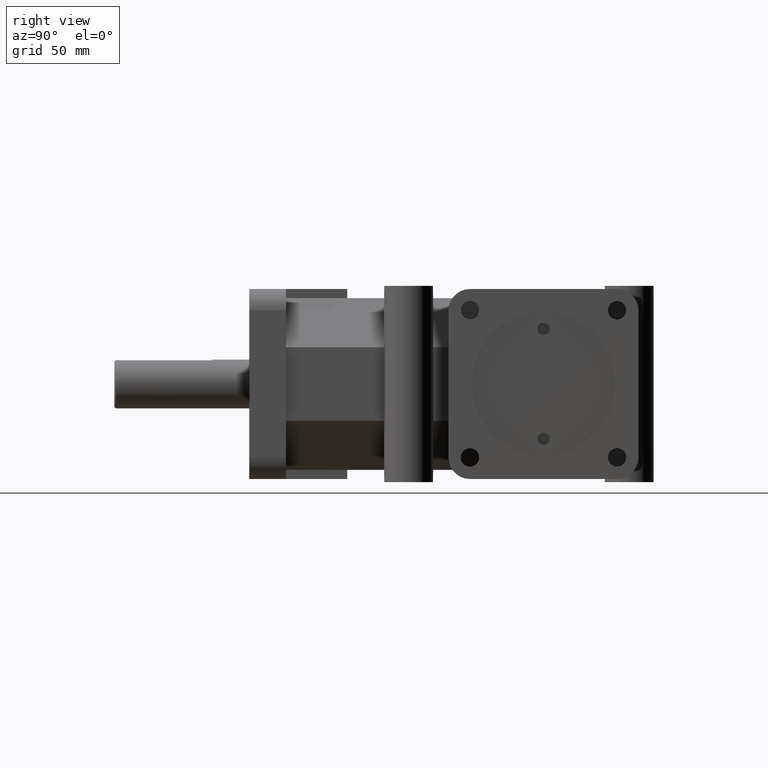
[diagram: clean part render]
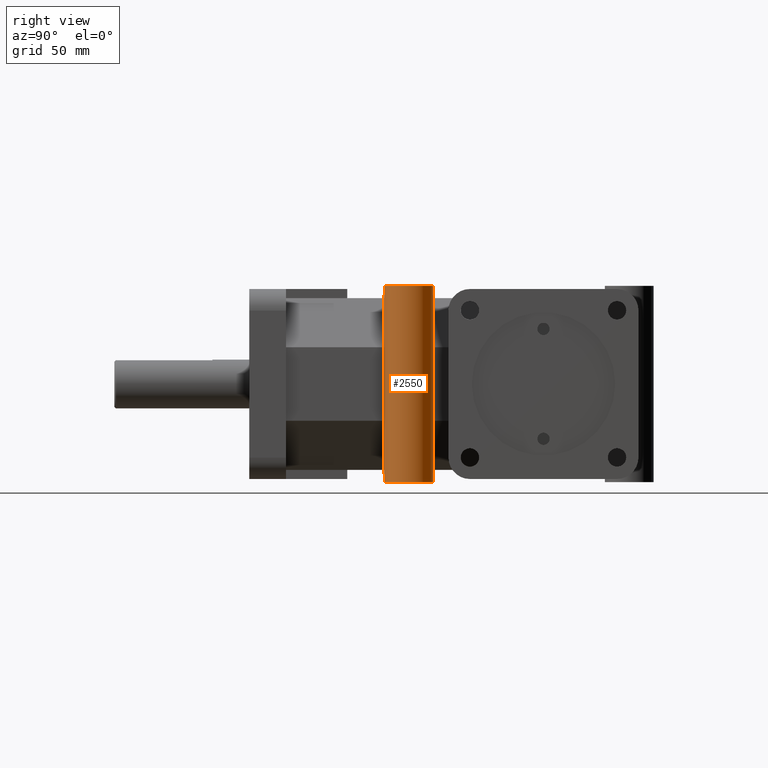
[diagram: same view with one face highlighted and labeled with its STEP entity id]
A machine part, right view. The second image highlights one B-rep face of the part: STEP entity #2550.
In plain terms, the highlighted cylindrical surface (bore or boss wall) has radius 12.7 mm, axis along (0, 0, -1).
Its self-contained STEP definition (entity closure, byte-faithful):
#64=CYLINDRICAL_SURFACE('',#2810,0.5);
#122=CIRCLE('',#2616,0.5);
#123=CIRCLE('',#2617,0.5);
#134=CIRCLE('',#2633,0.5);
#135=CIRCLE('',#2634,0.5);
#207=CIRCLE('',#2786,0.5);
#208=CIRCLE('',#2788,0.5);
#320=FACE_OUTER_BOUND('',#498,.T.);
#498=EDGE_LOOP('',(#2141,#2142,#2143,#2144,#2145,#2146,#2147,#2148,#2149,
#2150,#2151,#2152,#2153,#2154,#2155,#2156));
#736=LINE('',#4205,#986);
#738=LINE('',#4209,#988);
#744=LINE('',#4221,#994);
#746=LINE('',#4225,#996);
#757=LINE('',#4242,#1007);
#758=LINE('',#4243,#1008);
#759=LINE('',#4244,#1009);
#760=LINE('',#4245,#1010);
#986=VECTOR('',#3436,1.);
#988=VECTOR('',#3440,1.);
#994=VECTOR('',#3452,1.);
#996=VECTOR('',#3456,1.);
#1007=VECTOR('',#3475,0.5);
#1008=VECTOR('',#3476,1.);
#1009=VECTOR('',#3477,0.5);
#1010=VECTOR('',#3478,1.);
#1089=VERTEX_POINT('',#3677);
#1090=VERTEX_POINT('',#3679);
#1091=VERTEX_POINT('',#3681);
#1122=VERTEX_POINT('',#3754);
#1123=VERTEX_POINT('',#3756);
#1124=VERTEX_POINT('',#3758);
#1253=VERTEX_POINT('',#4169);
#1254=VERTEX_POINT('',#4172);
#1263=VERTEX_POINT('',#4203);
#1264=VERTEX_POINT('',#4207);
#1267=VERTEX_POINT('',#4219);
#1268=VERTEX_POINT('',#4223);
#1321=EDGE_CURVE('',#1089,#1090,#122,.T.);
#1322=EDGE_CURVE('',#1090,#1091,#123,.T.);
#1360=EDGE_CURVE('',#1122,#1123,#134,.T.);
#1361=EDGE_CURVE('',#1123,#1124,#135,.T.);
#1555=EDGE_CURVE('',#1253,#1253,#207,.T.);
#1556=EDGE_CURVE('',#1254,#1254,#208,.T.);
#1570=EDGE_CURVE('',#1089,#1263,#736,.T.);
#1572=EDGE_CURVE('',#1264,#1124,#738,.T.);
#1578=EDGE_CURVE('',#1091,#1267,#744,.T.);
#1580=EDGE_CURVE('',#1268,#1122,#746,.T.);
#1591=EDGE_CURVE('',#1254,#1123,#757,.T.);
#1592=EDGE_CURVE('',#1267,#1268,#758,.T.);
#1593=EDGE_CURVE('',#1090,#1253,#759,.T.);
#1594=EDGE_CURVE('',#1264,#1263,#760,.T.);
#2141=ORIENTED_EDGE('',*,*,#1556,.T.);
#2142=ORIENTED_EDGE('',*,*,#1591,.T.);
#2143=ORIENTED_EDGE('',*,*,#1360,.F.);
#2144=ORIENTED_EDGE('',*,*,#1580,.F.);
#2145=ORIENTED_EDGE('',*,*,#1592,.F.);
#2146=ORIENTED_EDGE('',*,*,#1578,.F.);
#2147=ORIENTED_EDGE('',*,*,#1322,.F.);
#2148=ORIENTED_EDGE('',*,*,#1593,.T.);
#2149=ORIENTED_EDGE('',*,*,#1555,.T.);
#2150=ORIENTED_EDGE('',*,*,#1593,.F.);
#2151=ORIENTED_EDGE('',*,*,#1321,.F.);
#2152=ORIENTED_EDGE('',*,*,#1570,.T.);
#2153=ORIENTED_EDGE('',*,*,#1594,.F.);
#2154=ORIENTED_EDGE('',*,*,#1572,.T.);
#2155=ORIENTED_EDGE('',*,*,#1361,.F.);
#2156=ORIENTED_EDGE('',*,*,#1591,.F.);
#2550=ADVANCED_FACE('',(#320),#64,.T.);
#2616=AXIS2_PLACEMENT_3D('',#3680,#2910,#2911);
#2617=AXIS2_PLACEMENT_3D('',#3682,#2912,#2913);
#2633=AXIS2_PLACEMENT_3D('',#3757,#2971,#2972);
#2634=AXIS2_PLACEMENT_3D('',#3759,#2973,#2974);
#2786=AXIS2_PLACEMENT_3D('',#4170,#3395,#3396);
#2788=AXIS2_PLACEMENT_3D('',#4173,#3399,#3400);
#2810=AXIS2_PLACEMENT_3D('',#4241,#3473,#3474);
#2910=DIRECTION('center_axis',(0.,0.,-1.));
#2911=DIRECTION('ref_axis',(1.,0.,0.));
#2912=DIRECTION('center_axis',(0.,0.,-1.));
#2913=DIRECTION('ref_axis',(1.,0.,0.));
#2971=DIRECTION('center_axis',(0.,0.,1.));
#2972=DIRECTION('ref_axis',(1.,0.,0.));
#2973=DIRECTION('center_axis',(0.,0.,1.));
#2974=DIRECTION('ref_axis',(1.,0.,0.));
#3395=DIRECTION('center_axis',(0.,0.,-1.));
#3396=DIRECTION('ref_axis',(1.,0.,0.));
#3399=DIRECTION('center_axis',(0.,0.,1.));
#3400=DIRECTION('ref_axis',(1.,0.,0.));
#3436=DIRECTION('',(0.,0.,-1.));
#3440=DIRECTION('',(0.,0.,-1.));
#3452=DIRECTION('',(0.,0.,-1.));
#3456=DIRECTION('',(0.,0.,-1.));
#3473=DIRECTION('center_axis',(0.,0.,-1.));
#3474=DIRECTION('ref_axis',(1.,0.,0.));
#3475=DIRECTION('',(0.,0.,1.));
#3476=DIRECTION('',(0.,0.,-1.));
#3477=DIRECTION('',(0.,0.,1.));
#3478=DIRECTION('',(0.,0.,1.));
#3677=CARTESIAN_POINT('',(1.75,2.75,1.75));
#3679=CARTESIAN_POINT('',(1.25,3.25,1.75));
#3680=CARTESIAN_POINT('Origin',(1.75,3.25,1.75));
#3681=CARTESIAN_POINT('',(1.75,3.75,1.75));
#3682=CARTESIAN_POINT('Origin',(1.75,3.25,1.75));
#3754=CARTESIAN_POINT('',(1.75,3.75,-1.75));
#3756=CARTESIAN_POINT('',(1.25,3.25,-1.75));
#3757=CARTESIAN_POINT('Origin',(1.75,3.25,-1.75));
#3758=CARTESIAN_POINT('',(1.75,2.75,-1.75));
#3759=CARTESIAN_POINT('Origin',(1.75,3.25,-1.75));
#4169=CARTESIAN_POINT('',(1.25,3.25,2.));
#4170=CARTESIAN_POINT('Origin',(1.75,3.25,2.));
#4172=CARTESIAN_POINT('',(1.25,3.25,-2.));
#4173=CARTESIAN_POINT('Origin',(1.75,3.25,-2.));
#4203=CARTESIAN_POINT('',(1.75,2.75,0.75));
#4205=CARTESIAN_POINT('',(1.75,2.75,0.));
#4207=CARTESIAN_POINT('',(1.75,2.75,-0.75));
#4209=CARTESIAN_POINT('',(1.75,2.75,0.));
#4219=CARTESIAN_POINT('',(1.75,3.75,0.749999999999997));
#4221=CARTESIAN_POINT('',(1.75,3.75,0.));
#4223=CARTESIAN_POINT('',(1.75,3.75,-0.749999999999997));
#4225=CARTESIAN_POINT('',(1.75,3.75,0.));
#4241=CARTESIAN_POINT('Origin',(1.75,3.25,0.));
#4242=CARTESIAN_POINT('',(1.25,3.25,0.));
#4243=CARTESIAN_POINT('',(1.75,3.75,0.));
#4244=CARTESIAN_POINT('',(1.25,3.25,0.));
#4245=CARTESIAN_POINT('',(1.75,2.75,0.));